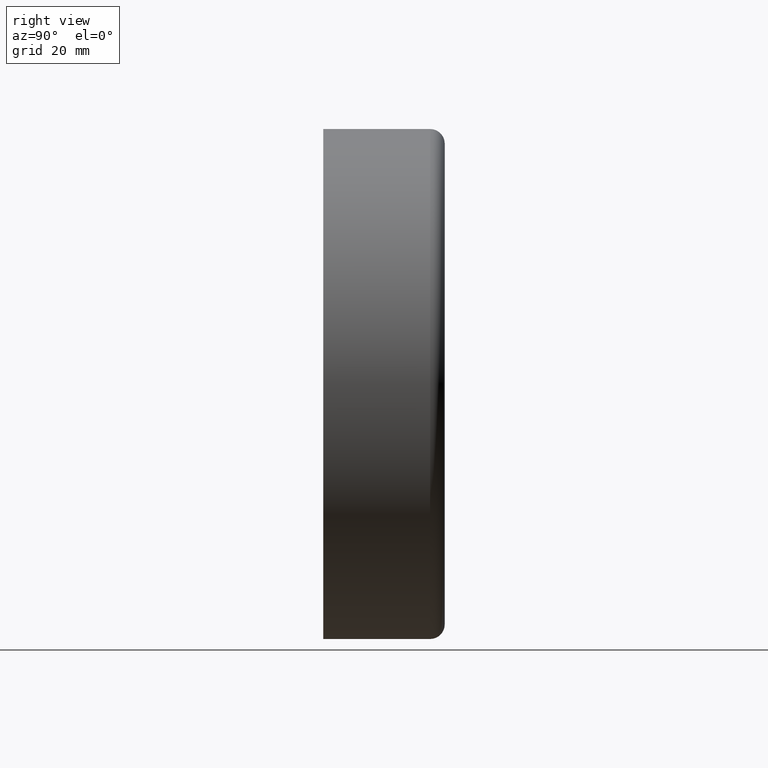
[diagram: clean part render]
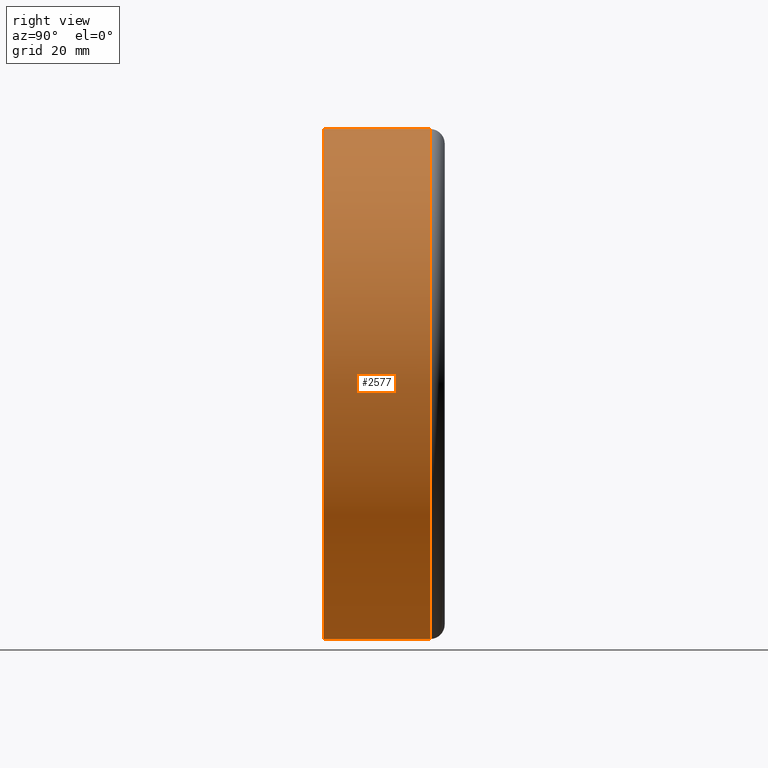
[diagram: same view with one face highlighted and labeled with its STEP entity id]
A machine part, right view. The second image highlights one B-rep face of the part: STEP entity #2577.
In plain terms, the highlighted cylindrical surface (partial cylindrical patch) has radius 52.5 mm, axis along (-0, -1, -0).
Its self-contained STEP definition (entity closure, byte-faithful):
#330 = CARTESIAN_POINT ( 'NONE',  ( 0.000000000000000000, 0.000000000000000000, 0.000000000000000000 ) ) ;
#1065 = AXIS2_PLACEMENT_3D ( 'NONE', #4881, #12723, #6000 ) ;
#1146 = LINE ( 'NONE', #13195, #11332 ) ;
#1653 = ORIENTED_EDGE ( 'NONE', *, *, #2069, .T. ) ;
#1954 = VERTEX_POINT ( 'NONE', #2461 ) ;
#2025 = AXIS2_PLACEMENT_3D ( 'NONE', #330, #4912, #13898 ) ;
#2069 = EDGE_CURVE ( 'NONE', #5082, #4607, #5258, .T. ) ;
#2426 = EDGE_LOOP ( 'NONE', ( #1653, #5237, #3154, #7433 ) ) ;
#2461 = CARTESIAN_POINT ( 'NONE',  ( 6.429395695523604744E-15, 0.000000000000000000, 52.50000000000000711 ) ) ;
#2577 = ADVANCED_FACE ( 'NONE', ( #7003 ), #12096, .T. ) ;
#3154 = ORIENTED_EDGE ( 'NONE', *, *, #8078, .F. ) ;
#3736 = CIRCLE ( 'NONE', #2025, 52.50000000000000711 ) ;
#4607 = VERTEX_POINT ( 'NONE', #4954 ) ;
#4881 = CARTESIAN_POINT ( 'NONE',  ( 0.000000000000000000, 22.00000000000000355, 0.000000000000000000 ) ) ;
#4912 = DIRECTION ( 'NONE',  ( -0.000000000000000000, -1.000000000000000000, -0.000000000000000000 ) ) ;
#4954 = CARTESIAN_POINT ( 'NONE',  ( 6.429395695523604744E-15, 22.00000000000000355, 52.50000000000000711 ) ) ;
#5082 = VERTEX_POINT ( 'NONE', #12366 ) ;
#5210 = CARTESIAN_POINT ( 'NONE',  ( 0.000000000000000000, 0.000000000000000000, -52.50000000000000711 ) ) ;
#5237 = ORIENTED_EDGE ( 'NONE', *, *, #5316, .T. ) ;
#5258 = CIRCLE ( 'NONE', #1065, 52.50000000000000711 ) ;
#5316 = EDGE_CURVE ( 'NONE', #4607, #1954, #11528, .T. ) ;
#6000 = DIRECTION ( 'NONE',  ( 0.000000000000000000, 0.000000000000000000, -1.000000000000000000 ) ) ;
#6197 = EDGE_CURVE ( 'NONE', #5082, #14403, #1146, .T. ) ;
#6362 = CARTESIAN_POINT ( 'NONE',  ( 6.429395695523604744E-15, 0.000000000000000000, 52.50000000000000711 ) ) ;
#6468 = DIRECTION ( 'NONE',  ( -0.000000000000000000, -1.000000000000000000, -0.000000000000000000 ) ) ;
#6533 = AXIS2_PLACEMENT_3D ( 'NONE', #9620, #9669, #9909 ) ;
#6606 = VECTOR ( 'NONE', #8762, 1000.000000000000000 ) ;
#7003 = FACE_OUTER_BOUND ( 'NONE', #2426, .T. ) ;
#7433 = ORIENTED_EDGE ( 'NONE', *, *, #6197, .F. ) ;
#8078 = EDGE_CURVE ( 'NONE', #14403, #1954, #3736, .T. ) ;
#8762 = DIRECTION ( 'NONE',  ( -0.000000000000000000, -1.000000000000000000, -0.000000000000000000 ) ) ;
#9620 = CARTESIAN_POINT ( 'NONE',  ( 0.000000000000000000, 0.000000000000000000, 0.000000000000000000 ) ) ;
#9669 = DIRECTION ( 'NONE',  ( -0.000000000000000000, -1.000000000000000000, -0.000000000000000000 ) ) ;
#9909 = DIRECTION ( 'NONE',  ( 0.000000000000000000, 0.000000000000000000, -1.000000000000000000 ) ) ;
#11332 = VECTOR ( 'NONE', #6468, 1000.000000000000000 ) ;
#11528 = LINE ( 'NONE', #6362, #6606 ) ;
#12096 = CYLINDRICAL_SURFACE ( 'NONE', #6533, 52.50000000000000711 ) ;
#12366 = CARTESIAN_POINT ( 'NONE',  ( 0.000000000000000000, 22.00000000000000355, -52.50000000000000711 ) ) ;
#12723 = DIRECTION ( 'NONE',  ( -0.000000000000000000, -1.000000000000000000, -0.000000000000000000 ) ) ;
#13195 = CARTESIAN_POINT ( 'NONE',  ( 0.000000000000000000, 0.000000000000000000, -52.50000000000000711 ) ) ;
#13898 = DIRECTION ( 'NONE',  ( 0.000000000000000000, 0.000000000000000000, -1.000000000000000000 ) ) ;
#14403 = VERTEX_POINT ( 'NONE', #5210 ) ;